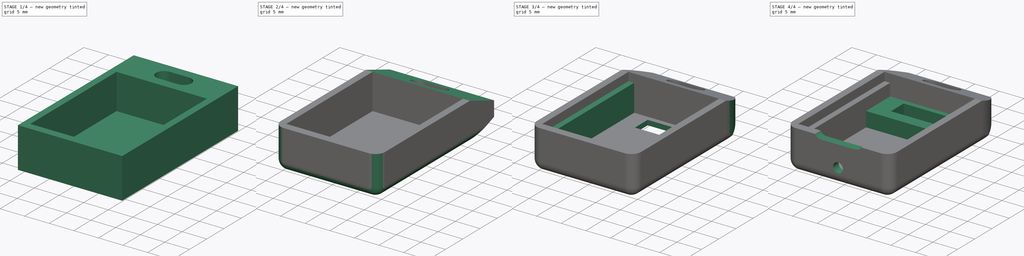
[diagram: build sequence overview — one tinted view per stage of 4, left to right]
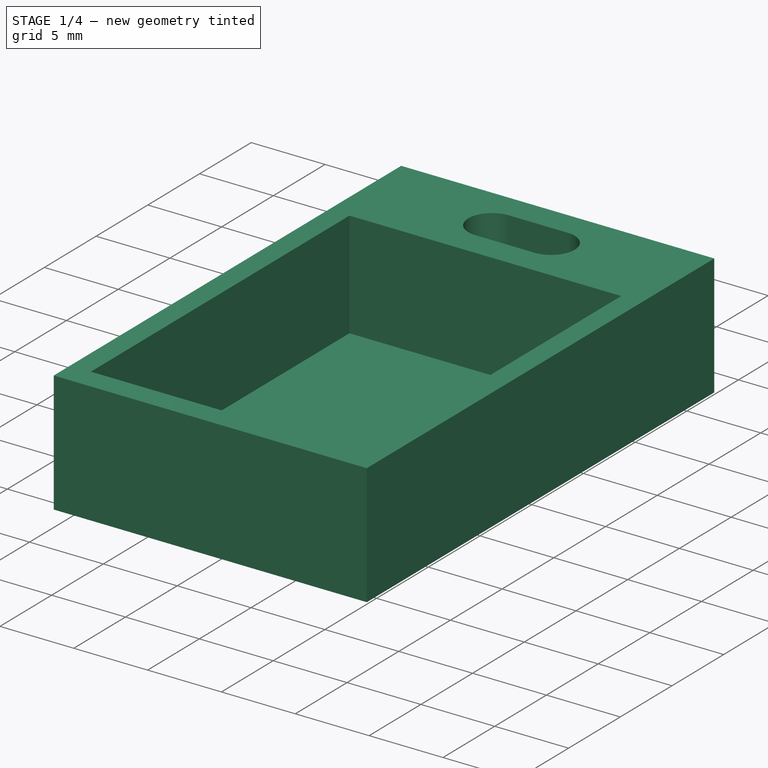
[diagram: stage 1 of 4 — iso view after this stage's code; geometry added in this stage tinted green]
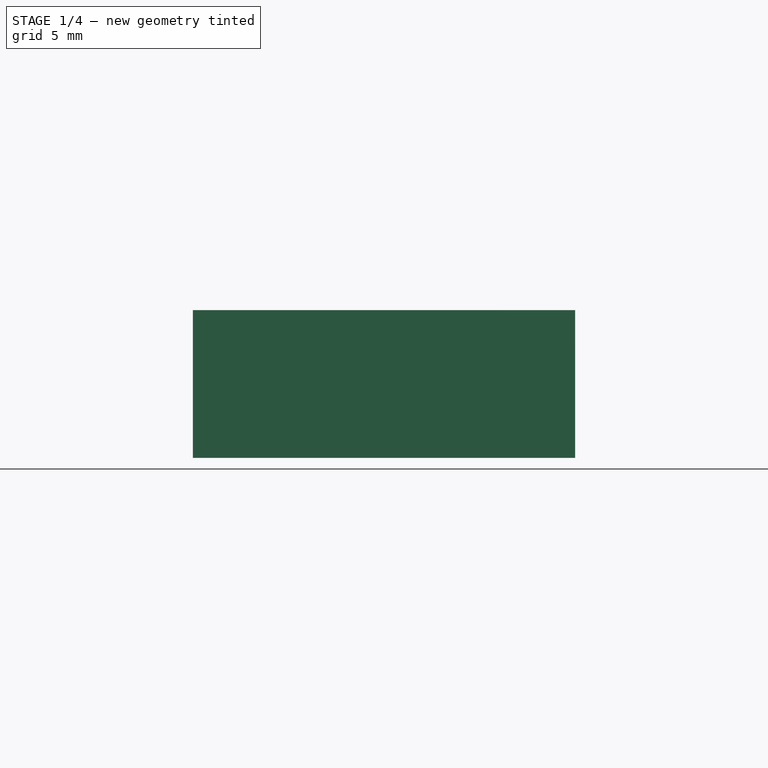
[diagram: stage 1 of 4 — front view after this stage's code; geometry added in this stage tinted green]
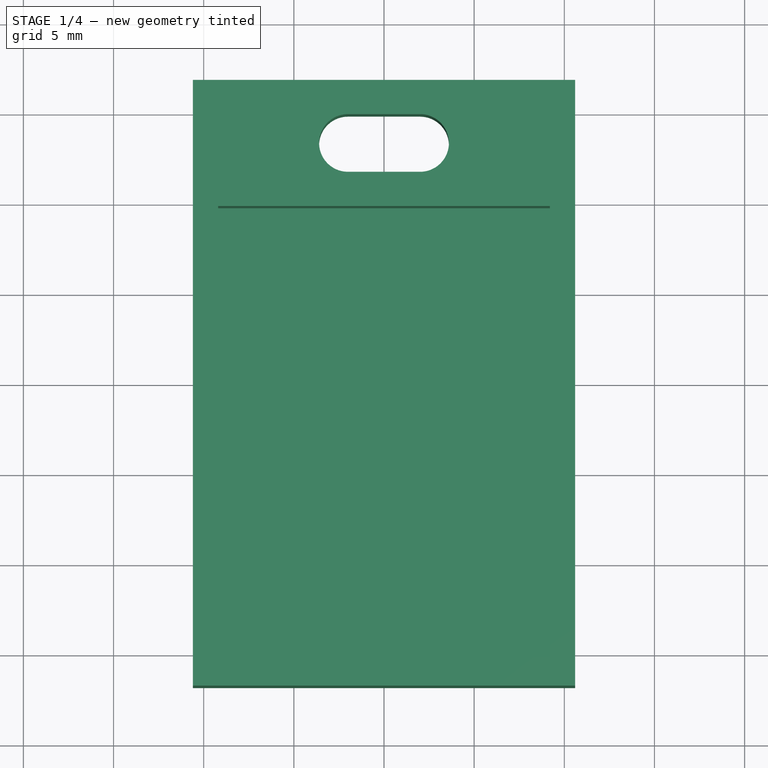
[diagram: stage 1 of 4 — top view after this stage's code; geometry added in this stage tinted green]
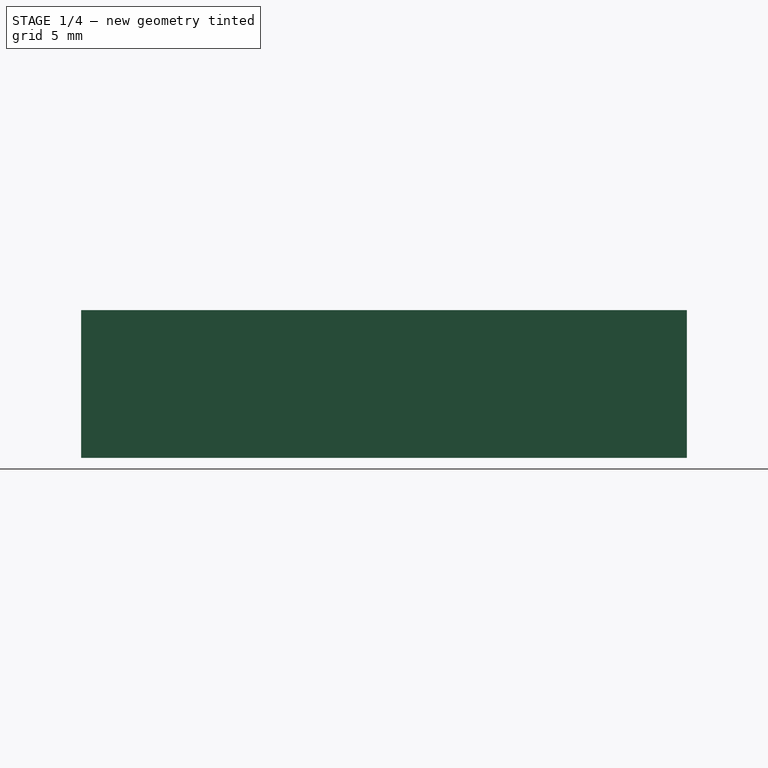
[diagram: stage 1 of 4 — right view after this stage's code; geometry added in this stage tinted green]
FCSTD DOCUMENT  (FreeCAD 1.0R39109 (Git))
Label: API Reciever v2
License: All rights reserved
LicenseURL: https://en.wikipedia.org/wiki/All_rights_reserved
objects: Sketcher::SketchObject×11, PartDesign::Pocket×7, PartDesign::Pad×3, PartDesign::Fillet×3, PartDesign::Body×1
note: 62 computed .brp shape members not serialized (recipe doc carries the construction recipe); baked Part::Feature solids carry a one-line shape summary decoded from their .brp

FEATURE [Sketcher::SketchObject] Sketch
  ArcFitTolerance = 1e-06
  AttachmentSupport = -> [XY_Plane]
  FullyConstrained = true
  MakeInternals = false
  MapMode = 5
  sketch-geometry (6):
    g0: LineSegment StartX=-10.6 StartY=16.8 StartZ=0 EndX=-10.6 EndY=-16.8 EndZ=0
    g1: LineSegment StartX=-10.6 StartY=-16.8 StartZ=0 EndX=10.6 EndY=-16.8 EndZ=0
    g2: LineSegment StartX=10.6 StartY=-16.8 StartZ=0 EndX=10.6 EndY=16.8 EndZ=0
    g3: LineSegment StartX=10.6 StartY=16.8 StartZ=0 EndX=-10.6 EndY=16.8 EndZ=0
    g4: LineSegment [constr] StartX=-10.6 StartY=16.8 StartZ=0 EndX=10.6 EndY=-16.8 EndZ=0
    g5: GeomPoint X=0 Y=0 Z=0
  constraints (14):
    c: Coincident(g0,g1)
    c: Coincident(g1,g2)
    c: Coincident(g2,g3)
    c: Coincident(g3,g0)
    c: Vertical(g0)
    c: Vertical(g2)
    c: Horizontal(g1)
    c: Horizontal(g3)
    c: Coincident(g4,g0)
    c: Coincident(g4,g1)
    c: Symmetric(g4,g4,g5)
    c: Coincident(g-1,g5)
    c: DistanceX(g1,g1) = 21.2
    c: DistanceY(g0,g0) = 33.6
FEATURE [PartDesign::Pad] Pad
  Direction = (0,0,1)
  Length = 8.2
  Length2 = 10
  Profile = -> Sketch
  ReferenceAxis = -> Sketch [N_Axis]
  Refine = true
  Suppressed = false
  Type = 0
FEATURE [Sketcher::SketchObject] Sketch001
  ArcFitTolerance = 1e-06
  AttachmentSupport = -> [Pad]
  ExternalGeometry = -> [Pad]
  FullyConstrained = true
  MakeInternals = false
  MapMode = 5
  Placement = pos=(0,0,8.2) rot=(0,0,1;0rad)
  sketch-geometry (5):
    g0: LineSegment StartX=-9.2 StartY=9.8 StartZ=0 EndX=-9.2 EndY=-15.2 EndZ=0
    g1: LineSegment StartX=-9.2 StartY=-15.2 StartZ=0 EndX=9.2 EndY=-15.2 EndZ=0
    g2: LineSegment StartX=9.2 StartY=-15.2 StartZ=0 EndX=9.2 EndY=9.8 EndZ=0
    g3: LineSegment StartX=9.2 StartY=9.8 StartZ=0 EndX=-9.2 EndY=9.8 EndZ=0
    g4: LineSegment [constr] StartX=-4e-16 StartY=-15.2 StartZ=0 EndX=-4e-16 EndY=-16.8 EndZ=0
  constraints (14):
    c: Coincident(g0,g1)
    c: Coincident(g1,g2)
    c: Coincident(g2,g3)
    c: Coincident(g3,g0)
    c: Vertical(g0)
    c: Vertical(g2)
    c: Horizontal(g1)
    c: Horizontal(g3)
    c: Distance(g-3,g1) = 1.6
    c: Symmetric(g1,g1,g4)
    c: Symmetric(g-3,g-3,g4)
    c: Vertical(g4)
    c: Distance(g-5,g0) = 1.4
    c: DistanceY(g0,g0) = 25
FEATURE [PartDesign::Pocket] Pocket
  BaseFeature = -> Pad
  Direction = (0,0,-1)
  Length = 7.2
  Length2 = 5
  Profile = -> Sketch001
  ReferenceAxis = -> Sketch001 [N_Axis]
  Refine = true
  Suppressed = false
  Type = 0
FEATURE [Sketcher::SketchObject] Sketch002
  ArcFitTolerance = 1e-06
  AttachmentSupport = -> [Pocket]
  ExternalGeometry = -> [Pocket]
  FullyConstrained = true
  MakeInternals = false
  MapMode = 5
  Placement = pos=(0,0,8.2) rot=(0,0,1;0rad)
  sketch-geometry (8):
    g0: ArcOfCircle CenterX=-2 CenterY=13.3 CenterZ=0 NormalX=0 NormalY=0 NormalZ=1 AngleXU=0 Radius=1.6 StartAngle=1.5708 EndAngle=4.71239
    g1: ArcOfCircle CenterX=2 CenterY=13.3 CenterZ=0 NormalX=0 NormalY=0 NormalZ=1 AngleXU=0 Radius=1.6 StartAngle=4.71239 EndAngle=7.85398
    g2: LineSegment StartX=-2 StartY=14.9 StartZ=0 EndX=2 EndY=14.9 EndZ=0
    g3: LineSegment StartX=-2 StartY=11.7 StartZ=0 EndX=2 EndY=11.7 EndZ=0
    g4: LineSegment [constr] StartX=-2 StartY=13.3 StartZ=0 EndX=2 EndY=13.3 EndZ=0
    g5: LineSegment [constr] StartX=3e-16 StartY=16.8 StartZ=0 EndX=-8e-16 EndY=9.8 EndZ=0
    g6: GeomPoint X=-3e-16 Y=13.3 Z=0
    g7: GeomPoint X=-3e-16 Y=13.3 Z=0
  constraints (15):
    c: Tangent(g0,g2) = 1.5708
    c: Tangent(g0,g3) = -1.5708
    c: Tangent(g1,g2) = 1.5708
    c: Tangent(g1,g3) = -1.5708
    c: Equal(g0,g1)
    c: Horizontal(g2)
    c: Coincident(g4,g0)
    c: Coincident(g4,g1)
    c: Symmetric(g-3,g-3,g5)
    c: Symmetric(g-4,g-4,g5)
    c: Symmetric(g5,g5,g6)
    c: Symmetric(g4,g4,g7)
    c: Coincident(g7,g6)
    c: DistanceX(g4,g4) = 4
    c: Radius(g1) = 1.6
FEATURE [PartDesign::Pocket] Pocket001
  BaseFeature = -> Pocket
  Direction = (0,0,-1)
  Length = 5
  Length2 = 5
  Profile = -> Sketch002
  ReferenceAxis = -> Sketch002 [N_Axis]
  Refine = true
  Suppressed = false
  Type = 1
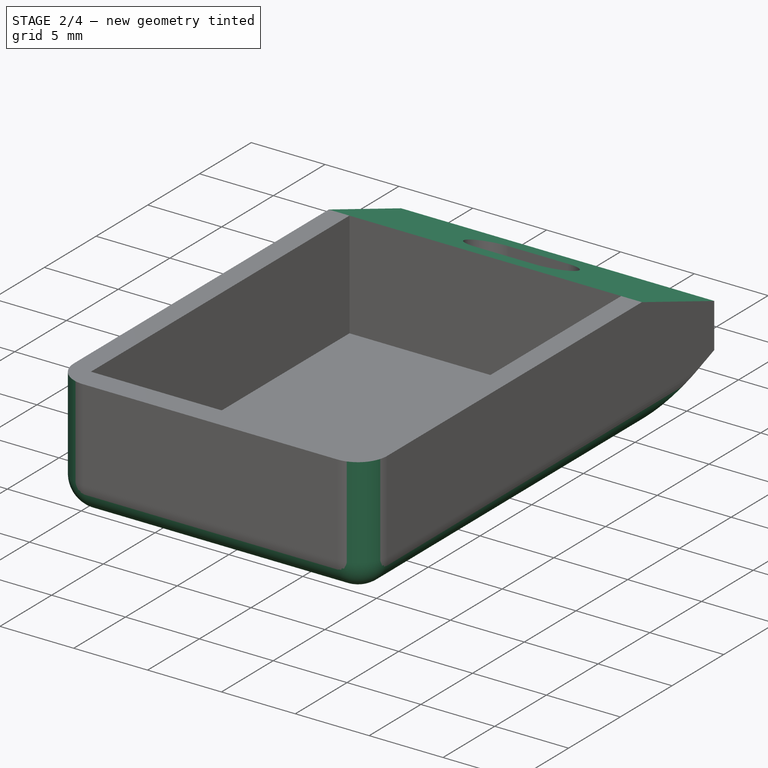
[diagram: stage 2 of 4 — iso view after this stage's code; geometry added in this stage tinted green]
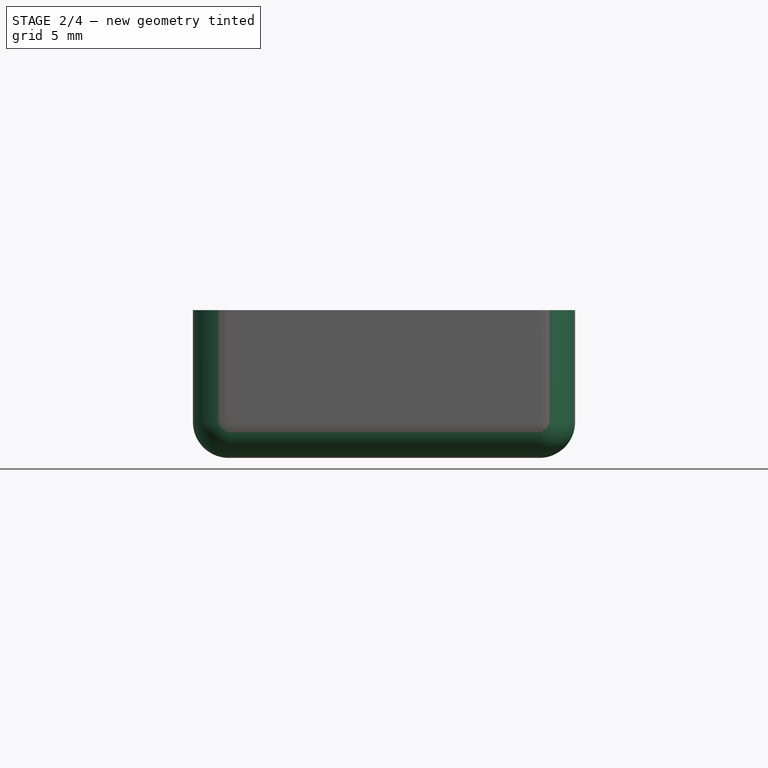
[diagram: stage 2 of 4 — front view after this stage's code; geometry added in this stage tinted green]
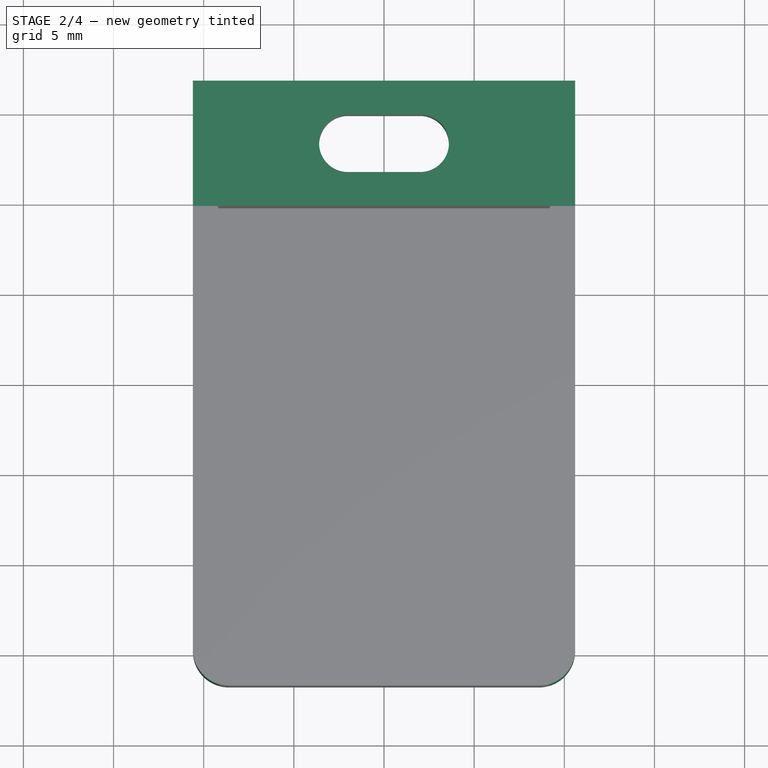
[diagram: stage 2 of 4 — top view after this stage's code; geometry added in this stage tinted green]
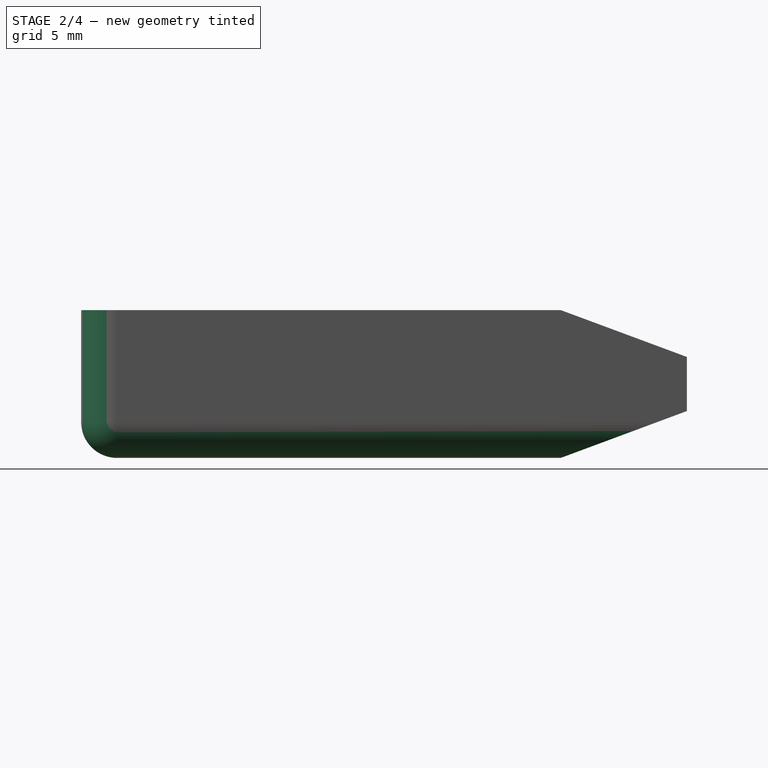
[diagram: stage 2 of 4 — right view after this stage's code; geometry added in this stage tinted green]
FEATURE [Sketcher::SketchObject] Sketch003
  ArcFitTolerance = 1e-06
  AttachmentSupport = -> [Pocket001]
  ExternalGeometry = -> [Pocket001]
  FullyConstrained = false
  MakeInternals = false
  MapMode = 5
  Placement = pos=(10.6,0,0) rot=(0.57735,0.57735,0.57735;2.0944rad)
  sketch-geometry (9):
    g0: LineSegment [constr] StartX=9.8 StartY=8.2 StartZ=0 EndX=9.8 EndY=0 EndZ=0
    g1: LineSegment StartX=9.8 StartY=8.2 StartZ=0 EndX=16.8 EndY=5.6 EndZ=0
    g2: LineSegment StartX=9.8 StartY=0 StartZ=0 EndX=16.8 EndY=2.6 EndZ=0
    g3: LineSegment [constr] StartX=13.3 StartY=6.9 StartZ=0 EndX=13.3 EndY=1.3 EndZ=0
    g4: LineSegment [constr] StartX=9.8 StartY=4.1 StartZ=0 EndX=13.3 EndY=4.1 EndZ=0
    g5: LineSegment StartX=9.8 StartY=8.2 StartZ=0 EndX=18.8149 EndY=8.2 EndZ=0
    g6: LineSegment StartX=18.8149 StartY=8.2 StartZ=0 EndX=18.8149 EndY=0 EndZ=0
    g7: LineSegment StartX=18.8149 StartY=0 StartZ=0 EndX=9.8 EndY=0 EndZ=0
    g8: LineSegment StartX=16.8 StartY=5.6 StartZ=0 EndX=16.8 EndY=2.6 EndZ=0
  constraints (23):
    c: Coincident(g0,g-3)
    c: PointOnObject(g0,g-4)
    c: Vertical(g0)
    c: Coincident(g1,g0)
    c: PointOnObject(g1,g-5)
    c: Coincident(g2,g0)
    c: PointOnObject(g2,g-5)
    c: Symmetric(g1,g1,g3)
    c: Vertical(g3)
    c: Symmetric(g0,g0,g4)
    c: Symmetric(g3,g3,g4)
    c: Horizontal(g4)
    c: PointOnObject(g3,g2)
    c: Coincident(g5,g0)
    c: Horizontal(g5)
    c: Coincident(g6,g5)
    c: Vertical(g6)
    c: Coincident(g7,g6)
    c: Coincident(g7,g0)
    c: Horizontal(g7)
    c: Coincident(g8,g1)
    c: Coincident(g8,g2)
    c: DistanceY(g8,g8) = 3
FEATURE [PartDesign::Pocket] Pocket002
  BaseFeature = -> Pocket001
  Direction = (-1,0,0)
  Length = 5
  Length2 = 5
  Profile = -> Sketch003
  ReferenceAxis = -> Sketch003 [N_Axis]
  Refine = true
  Suppressed = false
  Type = 1
FEATURE [PartDesign::Fillet] Fillet
  Base = -> Pocket002 [Edge16,Edge3]
  BaseFeature = -> Pocket002
  Radius = 2
  Refine = true
  SupportTransform = false
  Suppressed = false
  UseAllEdges = false
FEATURE [PartDesign::Fillet] Fillet001
  Base = -> Fillet [Edge7]
  BaseFeature = -> Fillet
  Radius = 2
  Refine = true
  SupportTransform = false
  Suppressed = false
  UseAllEdges = false
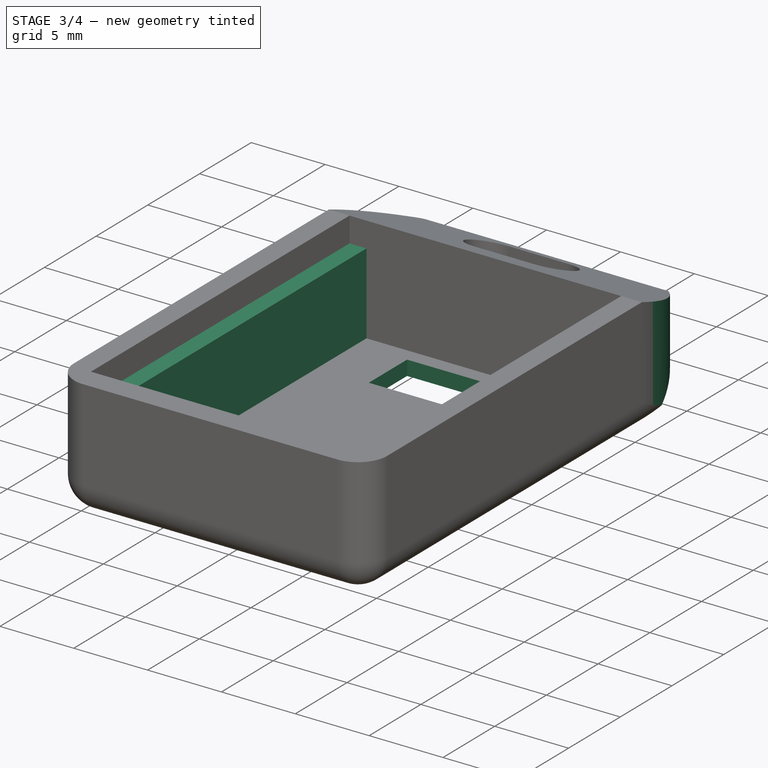
[diagram: stage 3 of 4 — iso view after this stage's code; geometry added in this stage tinted green]
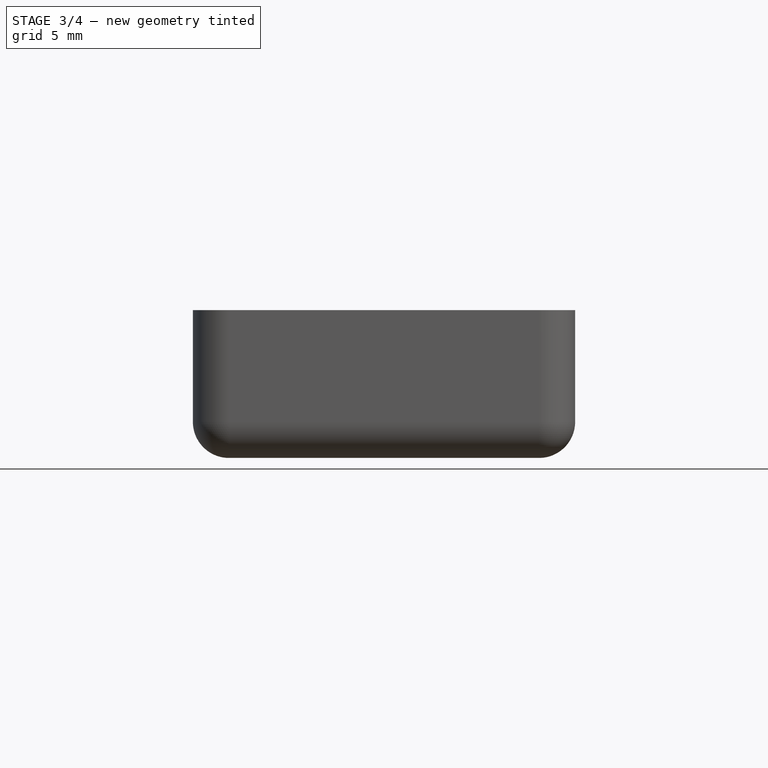
[diagram: stage 3 of 4 — front view after this stage's code; geometry added in this stage tinted green]
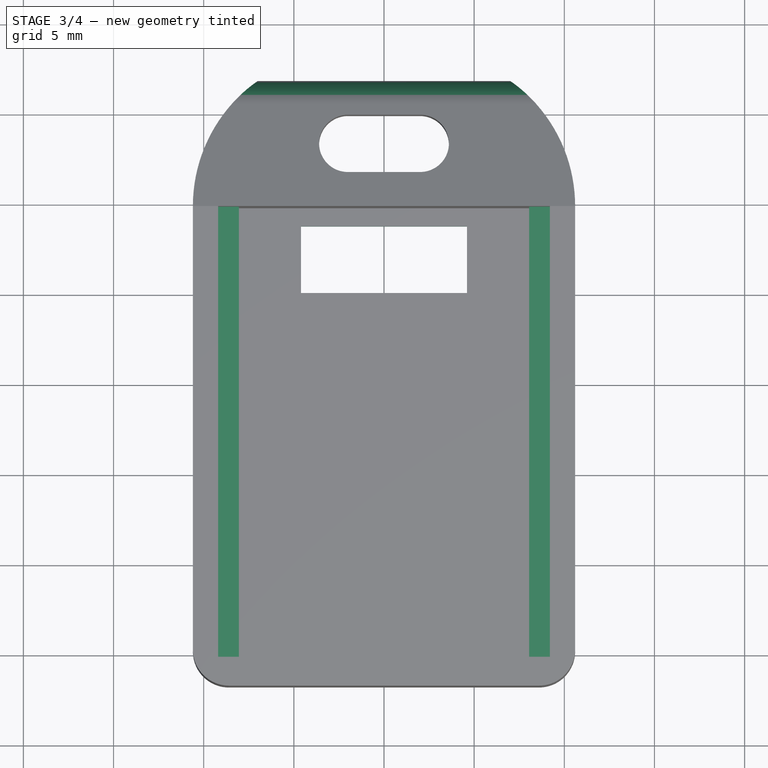
[diagram: stage 3 of 4 — top view after this stage's code; geometry added in this stage tinted green]
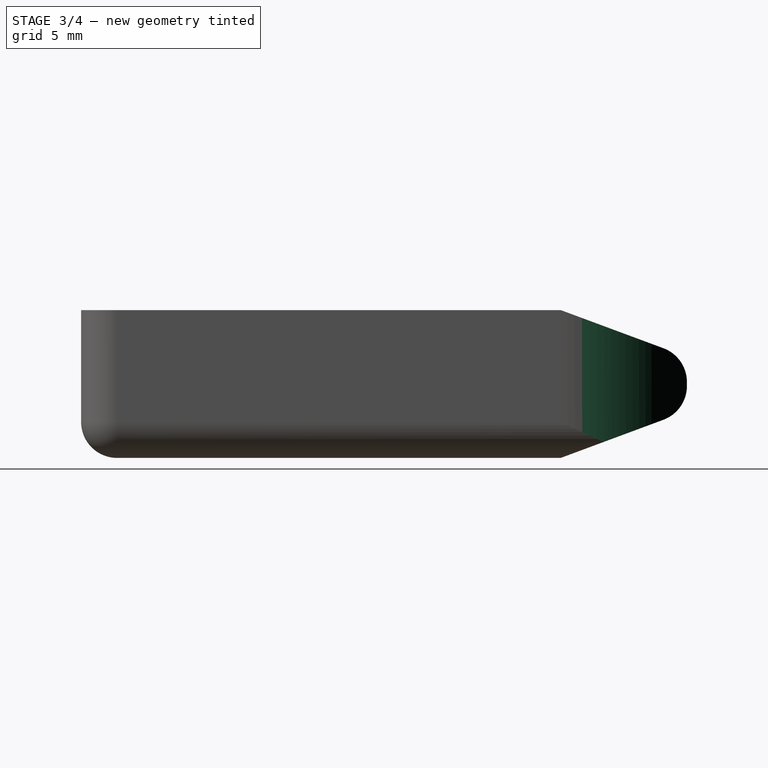
[diagram: stage 3 of 4 — right view after this stage's code; geometry added in this stage tinted green]
FEATURE [Sketcher::SketchObject] Sketch004
  ArcFitTolerance = 1e-06
  AttachmentSupport = -> [Fillet001]
  ExternalGeometry = -> [Fillet001]
  FullyConstrained = false
  MakeInternals = false
  MapMode = 5
  Placement = pos=(0,0,8.2) rot=(0,0,1;0rad)
  sketch-geometry (13):
    g0: LineSegment [constr] StartX=-10.6 StartY=16.8 StartZ=0 EndX=10.6 EndY=16.8 EndZ=0
    g1: ArcOfCircle CenterX=-1.99444 CenterY=9.8 CenterZ=0 NormalX=0 NormalY=0 NormalZ=1 AngleXU=0 Radius=8.60556 StartAngle=2.19157 EndAngle=3.14159
    g2: ArcOfCircle CenterX=1.99444 CenterY=9.8 CenterZ=0 NormalX=0 NormalY=0 NormalZ=1 AngleXU=0 Radius=8.60556 StartAngle=0 EndAngle=0.950022
    g3: LineSegment StartX=-7 StartY=16.8 StartZ=0 EndX=7 EndY=16.8 EndZ=0
    g4: LineSegment [constr] StartX=-1.99444 StartY=9.8 StartZ=0 EndX=1.99444 EndY=9.8 EndZ=0
    g5: LineSegment [constr] StartX=1e-16 StartY=16.8 StartZ=0 EndX=1e-16 EndY=9.8 EndZ=0
    g6: LineSegment [constr] StartX=-10.6 StartY=9.8 StartZ=0 EndX=-10.6 EndY=16.8 EndZ=0
    g7: LineSegment [constr] StartX=10.6 StartY=9.8 StartZ=0 EndX=10.6 EndY=16.8 EndZ=0
    g8: LineSegment StartX=-10.6 StartY=9.8 StartZ=0 EndX=-14.9452 EndY=9.8 EndZ=0
    g9: LineSegment StartX=-14.9452 StartY=9.8 StartZ=0 EndX=-14.9452 EndY=28.2934 EndZ=0
    g10: LineSegment StartX=-14.9452 StartY=28.2934 StartZ=0 EndX=16.2043 EndY=28.2934 EndZ=0
    g11: LineSegment StartX=16.2043 StartY=28.2934 StartZ=0 EndX=16.2043 EndY=9.8 EndZ=0
    g12: LineSegment StartX=16.2043 StartY=9.8 StartZ=0 EndX=10.6 EndY=9.8 EndZ=0
  constraints (33):
    c: Coincident(g0,g-3)
    c: Coincident(g0,g-4)
    c: Coincident(g3,g1)
    c: Coincident(g3,g2)
    c: Horizontal(g3)
    c: Coincident(g4,g1)
    c: Coincident(g4,g2)
    c: Horizontal(g4)
    c: PointOnObject(g1,g0)
    c: Symmetric(g3,g3,g5)
    c: Symmetric(g4,g4,g5)
    c: Vertical(g5)
    c: PointOnObject(g1,g4)
    c: PointOnObject(g2,g4)
    c: Coincident(g6,g1)
    c: Coincident(g6,g0)
    c: Vertical(g6)
    c: Coincident(g7,g0)
    c: Vertical(g7)
    c: Coincident(g2,g7)
    c: DistanceX(g3,g3) = 14
    c: DistanceY(g6,g6) = 7
    c: Coincident(g8,g1)
    c: Horizontal(g8)
    c: Coincident(g9,g8)
    c: Vertical(g9)
    c: Coincident(g10,g9)
    c: Horizontal(g10)
    c: Vertical(g11)
    c: Coincident(g12,g11)
    c: Coincident(g12,g2)
    c: Horizontal(g12)
    c: Coincident(g10,g11)
FEATURE [PartDesign::Pocket] Pocket003
  BaseFeature = -> Fillet001
  Direction = (0,0,-1)
  Length = 5
  Length2 = 5
  Profile = -> Sketch004
  ReferenceAxis = -> Sketch004 [N_Axis]
  Refine = true
  Suppressed = false
  Type = 1
FEATURE [PartDesign::Fillet] Fillet002
  Base = -> Pocket003 [Edge46,Edge32]
  BaseFeature = -> Pocket003
  Radius = 2
  Refine = true
  SupportTransform = false
  Suppressed = false
  UseAllEdges = false
FEATURE [Sketcher::SketchObject] Sketch005
  ArcFitTolerance = 1e-06
  AttachmentSupport = -> [Fillet002]
  ExternalGeometry = -> [Fillet002]
  FullyConstrained = true
  MakeInternals = false
  MapMode = 5
  Placement = pos=(0,0,1) rot=(0,0,1;0rad)
  sketch-geometry (8):
    g0: LineSegment StartX=-9.2 StartY=-15.2 StartZ=0 EndX=-8.05 EndY=-15.2 EndZ=0
    g1: LineSegment StartX=-8.05 StartY=-15.2 StartZ=0 EndX=-8.05 EndY=9.8 EndZ=0
    g2: LineSegment StartX=-8.05 StartY=9.8 StartZ=0 EndX=-9.2 EndY=9.8 EndZ=0
    g3: LineSegment StartX=-9.2 StartY=9.8 StartZ=0 EndX=-9.2 EndY=-15.2 EndZ=0
    g4: LineSegment StartX=9.2 StartY=9.8 StartZ=0 EndX=8.05 EndY=9.8 EndZ=0
    g5: LineSegment StartX=8.05 StartY=9.8 StartZ=0 EndX=8.05 EndY=-15.2 EndZ=0
    g6: LineSegment StartX=8.05 StartY=-15.2 StartZ=0 EndX=9.2 EndY=-15.2 EndZ=0
    g7: LineSegment StartX=9.2 StartY=-15.2 StartZ=0 EndX=9.2 EndY=9.8 EndZ=0
  constraints (22):
    c: Coincident(g0,g1)
    c: Coincident(g1,g2)
    c: Coincident(g2,g3)
    c: Coincident(g3,g0)
    c: Horizontal(g0)
    c: Horizontal(g2)
    c: Vertical(g1)
    c: Vertical(g3)
    c: Coincident(g0,g-4)
    c: PointOnObject(g1,g-3)
    c: DistanceX(g2,g2) = 1.15
    c: Coincident(g4,g5)
    c: Coincident(g5,g6)
    c: Coincident(g6,g7)
    c: Coincident(g7,g4)
    c: Horizontal(g4)
    c: Horizontal(g6)
    c: Vertical(g5)
    c: Vertical(g7)
    c: Coincident(g4,g-3)
    c: PointOnObject(g5,g-4)
    c: Equal(g6,g0)
FEATURE [PartDesign::Pad] Pad001
  BaseFeature = -> Fillet002
  Direction = (0,0,1)
  Length = 5.5
  Length2 = 10
  Profile = -> Sketch005
  ReferenceAxis = -> Sketch005 [N_Axis]
  Refine = true
  Suppressed = false
  Type = 0
FEATURE [Sketcher::SketchObject] Sketch006
  ArcFitTolerance = 1e-06
  AttachmentSupport = -> [Pad001]
  ExternalGeometry = -> [Pad001]
  FullyConstrained = true
  MakeInternals = false
  MapMode = 5
  Placement = pos=(0,0,1) rot=(0,0,1;0rad)
  sketch-geometry (5):
    g0: LineSegment StartX=-4.6 StartY=8.8 StartZ=0 EndX=-4.6 EndY=5.1 EndZ=0
    g1: LineSegment StartX=-4.6 StartY=5.1 StartZ=0 EndX=4.6 EndY=5.1 EndZ=0
    g2: LineSegment StartX=4.6 StartY=5.1 StartZ=0 EndX=4.6 EndY=8.8 EndZ=0
    g3: LineSegment StartX=4.6 StartY=8.8 StartZ=0 EndX=-4.6 EndY=8.8 EndZ=0
    g4: LineSegment [constr] StartX=-1.3e-15 StartY=8.8 StartZ=0 EndX=-1.3e-15 EndY=9.8 EndZ=0
  constraints (14):
    c: Coincident(g0,g1)
    c: Coincident(g1,g2)
    c: Coincident(g2,g3)
    c: Coincident(g3,g0)
    c: Vertical(g0)
    c: Vertical(g2)
    c: Horizontal(g1)
    c: Horizontal(g3)
    c: DistanceX(g3,g3) = 9.2
    c: DistanceY(g0,g0) = 3.7
    c: Symmetric(g3,g3,g4)
    c: Symmetric(g-3,g-3,g4)
    c: Vertical(g4)
    c: DistanceY(g4,g4) = 1
FEATURE [PartDesign::Pocket] Pocket004
  BaseFeature = -> Pad001
  Direction = (0,0,-1)
  Length = 5
  Length2 = 5
  Profile = -> Sketch006
  ReferenceAxis = -> Sketch006 [N_Axis]
  Refine = true
  Suppressed = false
  Type = 0
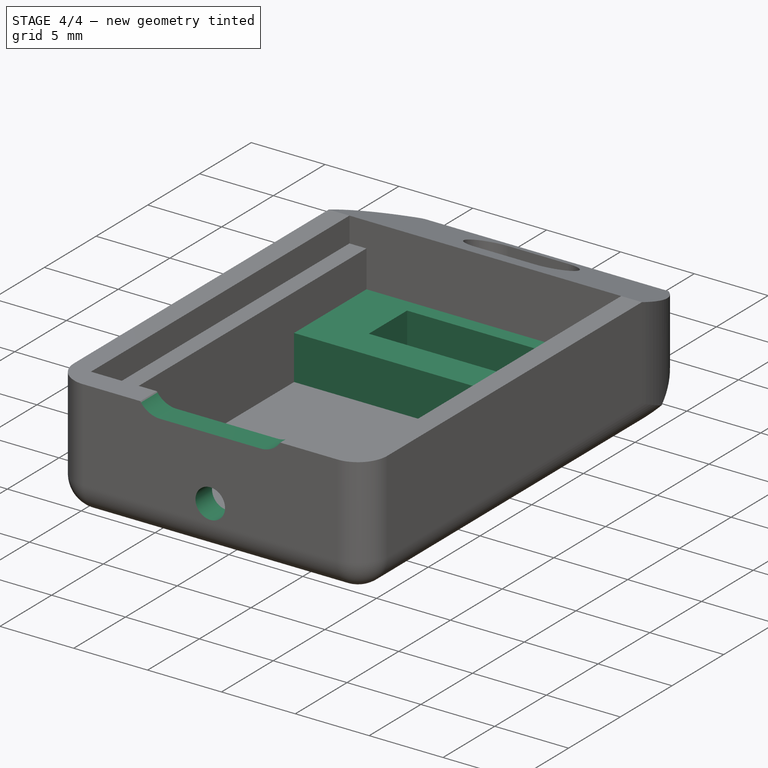
[diagram: stage 4 of 4 — iso view after this stage's code; geometry added in this stage tinted green]
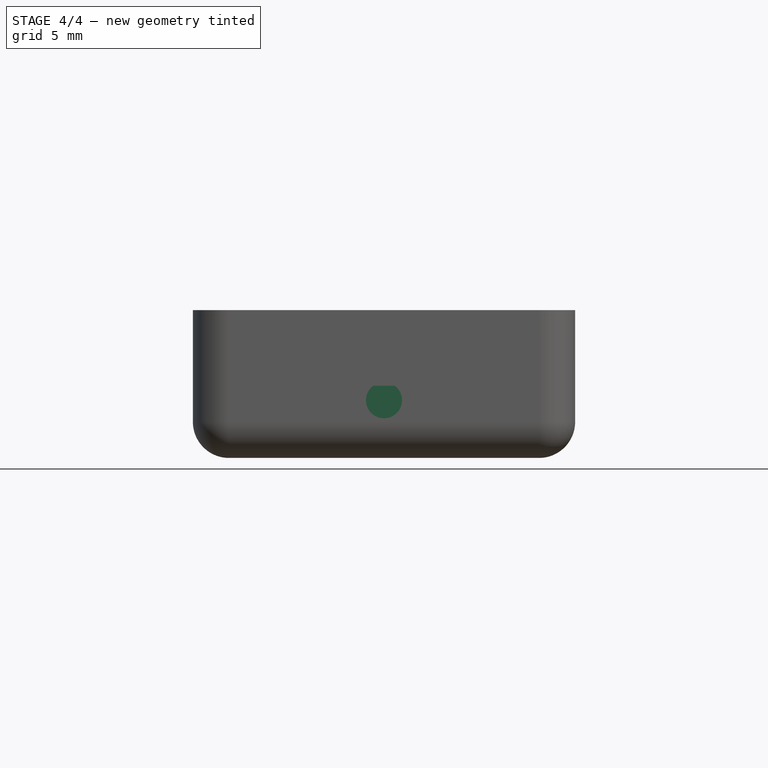
[diagram: stage 4 of 4 — front view after this stage's code; geometry added in this stage tinted green]
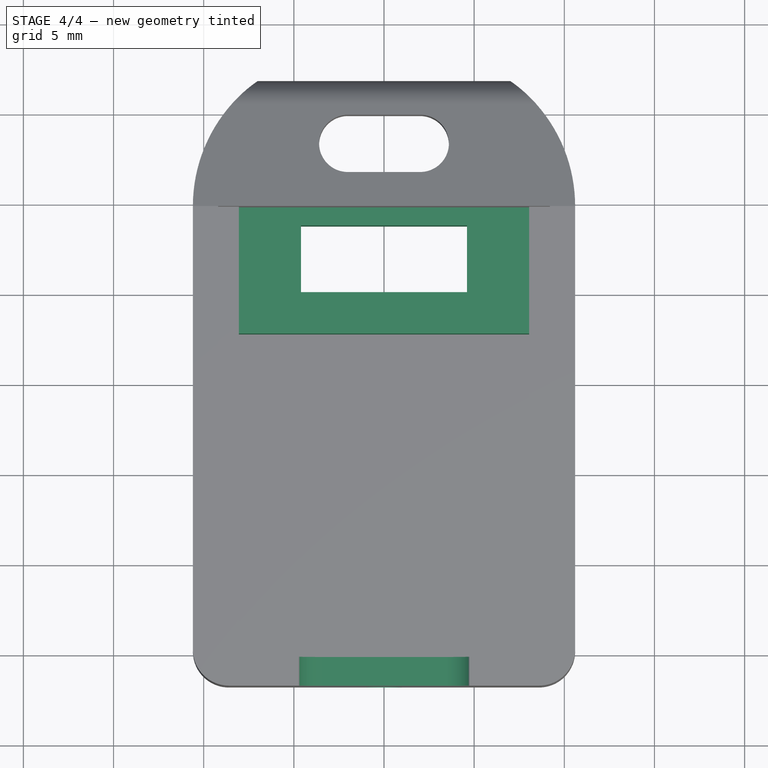
[diagram: stage 4 of 4 — top view after this stage's code; geometry added in this stage tinted green]
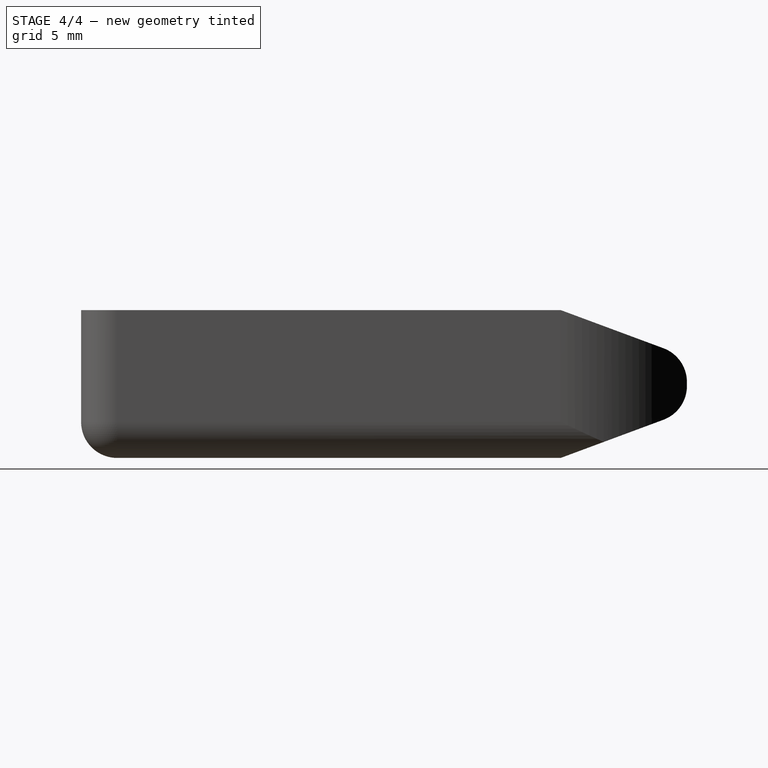
[diagram: stage 4 of 4 — right view after this stage's code; geometry added in this stage tinted green]
FEATURE [Sketcher::SketchObject] Sketch007
  ArcFitTolerance = 1e-06
  AttachmentSupport = -> [Pocket004]
  ExternalGeometry = -> [Pocket004]
  FullyConstrained = true
  MakeInternals = false
  MapMode = 5
  Placement = pos=(0,0,1) rot=(0,0,1;0rad)
  sketch-geometry (8):
    g0: LineSegment StartX=8.05 StartY=9.8 StartZ=0 EndX=-8.05 EndY=9.8 EndZ=0
    g1: LineSegment StartX=-8.05 StartY=9.8 StartZ=0 EndX=-8.05 EndY=2.8 EndZ=0
    g2: LineSegment StartX=-8.05 StartY=2.8 StartZ=0 EndX=8.05 EndY=2.8 EndZ=0
    g3: LineSegment StartX=8.05 StartY=2.8 StartZ=0 EndX=8.05 EndY=9.8 EndZ=0
    g4: LineSegment StartX=-4.6 StartY=8.8 StartZ=0 EndX=-4.6 EndY=5.1 EndZ=0
    g5: LineSegment StartX=-4.6 StartY=5.1 StartZ=0 EndX=4.6 EndY=5.1 EndZ=0
    g6: LineSegment StartX=4.6 StartY=5.1 StartZ=0 EndX=4.6 EndY=8.8 EndZ=0
    g7: LineSegment StartX=4.6 StartY=8.8 StartZ=0 EndX=-4.6 EndY=8.8 EndZ=0
  constraints (20):
    c: Coincident(g0,g1)
    c: Coincident(g1,g2)
    c: Coincident(g2,g3)
    c: Coincident(g3,g0)
    c: Horizontal(g2)
    c: Vertical(g1)
    c: Vertical(g3)
    c: Coincident(g0,g-3)
    c: Coincident(g0,g-3)
    c: DistanceY(g1,g1) = 7
    c: Coincident(g4,g5)
    c: Coincident(g5,g6)
    c: Coincident(g6,g7)
    c: Coincident(g7,g4)
    c: Vertical(g4)
    c: Vertical(g6)
    c: Horizontal(g5)
    c: Horizontal(g7)
    c: Coincident(g4,g-5)
    c: Coincident(g5,g-4)
FEATURE [PartDesign::Pad] Pad002
  BaseFeature = -> Pocket004
  Direction = (0,0,1)
  Length = 3
  Length2 = 10
  Profile = -> Sketch007
  ReferenceAxis = -> Sketch007 [N_Axis]
  Refine = true
  Suppressed = false
  Type = 0
FEATURE [Sketcher::SketchObject] Sketch008
  ArcFitTolerance = 1e-06
  AttachmentSupport = -> [Pad002]
  FullyConstrained = true
  MakeInternals = false
  MapMode = 5
  Placement = pos=(0,-16.8,0) rot=(1,0,0;1.5708rad)
FEATURE [Sketcher::SketchObject] Sketch009
  ArcFitTolerance = 1e-06
  AttachmentSupport = -> [Pad002]
  ExternalGeometry = -> [Pad002]
  FullyConstrained = true
  MakeInternals = false
  MapMode = 5
  Placement = pos=(0,-16.8,0) rot=(1,0,0;1.5708rad)
  sketch-geometry (1):
    g0: Circle CenterX=0 CenterY=3.2 CenterZ=0 NormalX=0 NormalY=0 NormalZ=1 AngleXU=0 Radius=1
  constraints (3):
    c: PointOnObject(g0,g-2)
    c: Diameter(g0) = 2
    c: Distance(g0,g-3) = 5
FEATURE [PartDesign::Pocket] Pocket005
  BaseFeature = -> Pad002
  Direction = (0,1,-2e-16)
  Length = 5
  Length2 = 5
  Profile = -> Sketch009
  ReferenceAxis = -> Sketch009 [N_Axis]
  Refine = true
  Suppressed = false
  Type = 0
FEATURE [Sketcher::SketchObject] Sketch010
  ArcFitTolerance = 1e-06
  AttachmentSupport = -> [Pocket005]
  ExternalGeometry = -> [Pocket005]
  FullyConstrained = false
  MakeInternals = false
  MapMode = 5
  Placement = pos=(0,-16.8,0) rot=(1,0,0;1.5708rad)
  sketch-geometry (6):
    g0: ArcOfCircle CenterX=-3.4 CenterY=9.07818 CenterZ=0 NormalX=0 NormalY=0 NormalZ=1 AngleXU=0 Radius=1.6 StartAngle=1.5708 EndAngle=4.71239
    g1: ArcOfCircle CenterX=3.4 CenterY=9.07818 CenterZ=0 NormalX=0 NormalY=0 NormalZ=1 AngleXU=0 Radius=1.6 StartAngle=4.71239 EndAngle=7.85398
    g2: LineSegment StartX=-3.4 StartY=10.6782 StartZ=0 EndX=3.4 EndY=10.6782 EndZ=0
    g3: LineSegment StartX=-3.4 StartY=7.47818 StartZ=0 EndX=3.4 EndY=7.47818 EndZ=0
    g4: LineSegment [constr] StartX=-3.4 StartY=9.07818 StartZ=0 EndX=3.4 EndY=9.07818 EndZ=0
    g5: LineSegment [constr] StartX=0 StartY=8.07818 StartZ=0 EndX=0 EndY=9.07818 EndZ=0
  constraints (14):
    c: Tangent(g0,g2) = 1.5708
    c: Tangent(g0,g3) = -1.5708
    c: Tangent(g1,g2) = 1.5708
    c: Tangent(g1,g3) = -1.5708
    c: Equal(g0,g1)
    c: Horizontal(g2)
    c: Coincident(g4,g0)
    c: Coincident(g4,g1)
    c: PointOnObject(g5,g-2)
    c: Symmetric(g4,g4,g5)
    c: Vertical(g5)
    c: Radius(g0) = 1.6
    c: DistanceY(g5,g5) = 1
    c: DistanceX(g4,g4) = 6.8
FEATURE [PartDesign::Pocket] Pocket006
  BaseFeature = -> Pocket005
  Direction = (0,1,-2e-16)
  Length = 5
  Length2 = 5
  Profile = -> Sketch010
  ReferenceAxis = -> Sketch010 [N_Axis]
  Refine = true
  Suppressed = false
  Type = 0
FEATURE [PartDesign::Body] Body
  AllowCompound = false
  Group = -> [Sketch,Pad,Sketch001,Pocket,Sketch002,Pocket001,Sketch003,Pocket002,Fillet,Fillet001,Sketch004,Pocket003,Fillet002,Sketch005,Pad001,Sketch006,Pocket004,Sketch007,Pad002,Sketch008,Sketch009,Pocket005,Sketch010,Pocket006]
  Origin = -> Origin
  Tip = -> Pocket006
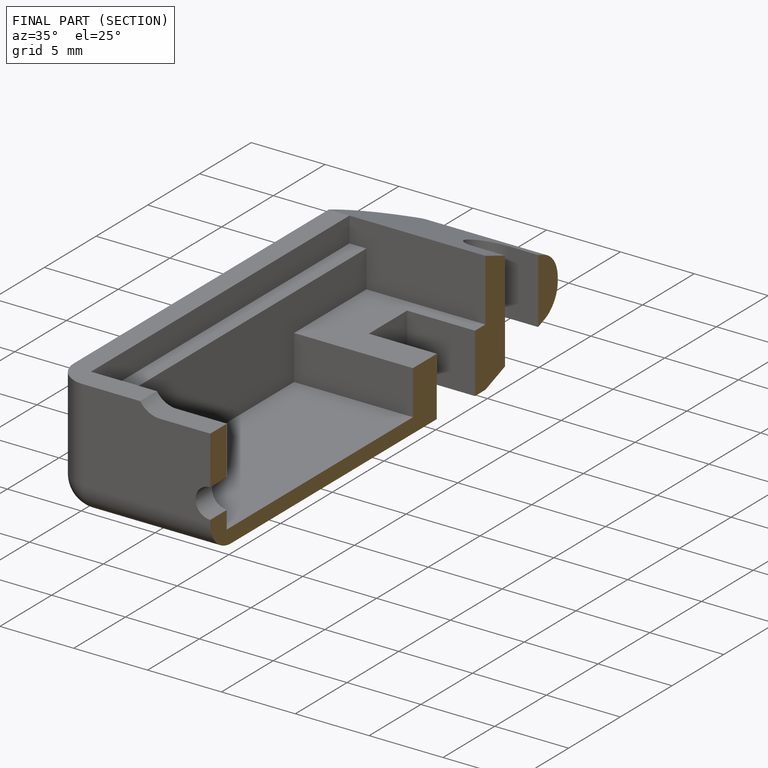
[diagram: finished part — half-section view (interior)]
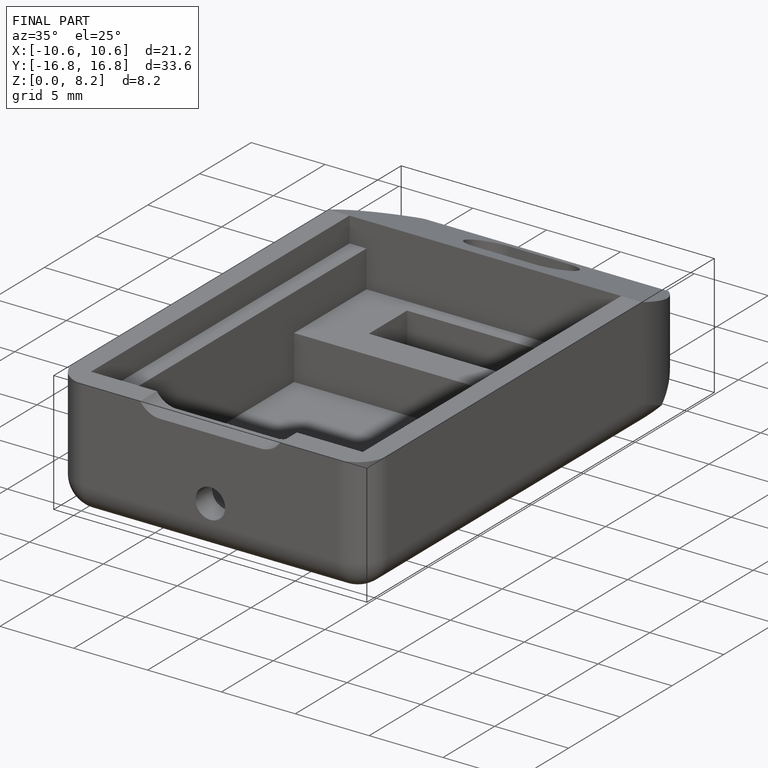
[diagram: finished part — iso view with bounding-box wireframe]
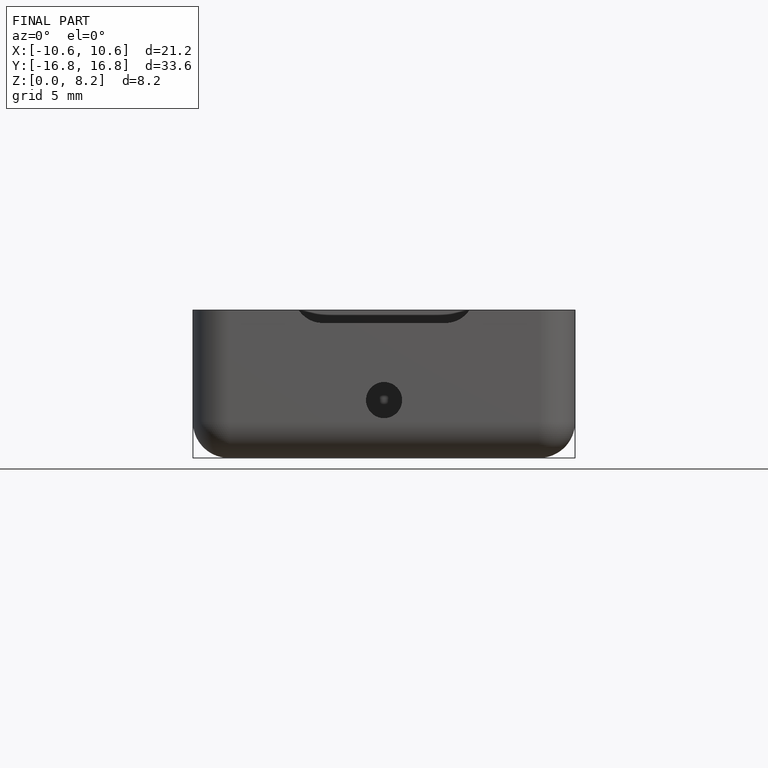
[diagram: finished part — front view with bounding-box wireframe]
